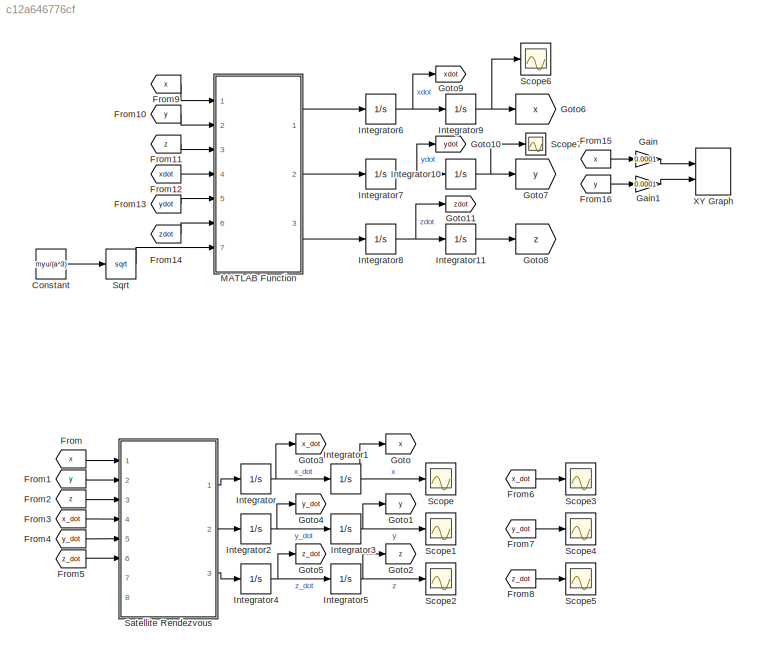
MODEL slx_c12a646776cf
KIND model
CONFIG AbsTol = auto
CONFIG EnableMultiTasking = off
CONFIG FixedStep = auto
CONFIG MaxStep = auto
CONFIG MinStep = auto
CONFIG RelTol = 1e-3
CONFIG SampleTimeConstraint = Unconstrained
CONFIG SolverName = VariableStepAuto
CONFIG StartTime = 0.0
CONFIG StopTime = 1e4
BLOCK [Constant] Constant
  Value = myu/(a^3)
BLOCK [From] From
  Commented = on
  GotoTag = x
BLOCK [From] From1
  Commented = on
  GotoTag = y
BLOCK [From] From10
  GotoTag = y
BLOCK [From] From11
  GotoTag = z
BLOCK [From] From12
  GotoTag = xdot
BLOCK [From] From13
  GotoTag = ydot
BLOCK [From] From14
  GotoTag = zdot
BLOCK [From] From15
  GotoTag = x
BLOCK [From] From16
  GotoTag = y
BLOCK [From] From2
  Commented = on
  GotoTag = z
BLOCK [From] From3
  Commented = on
  GotoTag = x_dot
BLOCK [From] From4
  Commented = on
  GotoTag = y_dot
BLOCK [From] From5
  Commented = on
  GotoTag = z_dot
BLOCK [From] From6
  Commented = on
  GotoTag = x_dot
BLOCK [From] From7
  Commented = on
  GotoTag = y_dot
BLOCK [From] From8
  Commented = on
  GotoTag = z_dot
BLOCK [From] From9
  GotoTag = x
BLOCK [Gain] Gain
  Gain = 0.0001
BLOCK [Gain] Gain1
  Gain = 0.0001
BLOCK [Goto] Goto
  Commented = on
  GotoTag = x
BLOCK [Goto] Goto1
  Commented = on
  GotoTag = y
BLOCK [Goto] Goto10
  GotoTag = ydot
BLOCK [Goto] Goto11
  GotoTag = zdot
BLOCK [Goto] Goto2
  Commented = on
  GotoTag = z
BLOCK [Goto] Goto3
  Commented = on
  GotoTag = x_dot
BLOCK [Goto] Goto4
  Commented = on
  GotoTag = y_dot
BLOCK [Goto] Goto5
  Commented = on
  GotoTag = z_dot
BLOCK [Goto] Goto6
  GotoTag = x
BLOCK [Goto] Goto7
  GotoTag = y
BLOCK [Goto] Goto8
  GotoTag = z
BLOCK [Goto] Goto9
  GotoTag = xdot
BLOCK [Integrator] Integrator
  Commented = on
  Ports = [1, 1]
BLOCK [Integrator] Integrator1
  Commented = on
  Ports = [1, 1]
BLOCK [Integrator] Integrator10
  InitialCondition = 10*1000
  Ports = [1, 1]
BLOCK [Integrator] Integrator11
  Ports = [1, 1]
BLOCK [Integrator] Integrator2
  Commented = on
  Ports = [1, 1]
BLOCK [Integrator] Integrator3
  Commented = on
  Ports = [1, 1]
BLOCK [Integrator] Integrator4
  Commented = on
  Ports = [1, 1]
BLOCK [Integrator] Integrator5
  Commented = on
  Ports = [1, 1]
BLOCK [Integrator] Integrator6
  InitialCondition = 22
  Ports = [1, 1]
BLOCK [Integrator] Integrator7
  InitialCondition = -22
  Ports = [1, 1]
BLOCK [Integrator] Integrator8
  Ports = [1, 1]
BLOCK [Integrator] Integrator9
  InitialCondition = 10*1000
  Ports = [1, 1]
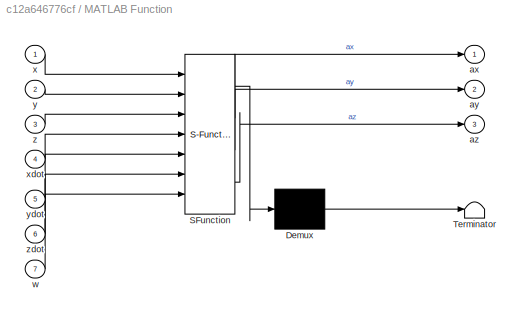
BLOCK [SubSystem] MATLAB Function
  ErrorFcn = Stateflow.Translate.translate
  PermitHierarchicalResolution = ExplicitOnly
  Ports = [7, 3]
  RequestExecContextInheritance = off
  SFBlockType = MATLAB Function
  TreatAsAtomicUnit = on
BLOCK [Demux] MATLAB Function/ Demux 
  Outputs = 1
  Ports = [1, 1]
BLOCK [S-Function] MATLAB Function/ SFunction 
  EnableBusSupport = on
  FunctionName = sf_sfun
  PortCounts = [7 4]
  Ports = [7, 4]
  SFcnIsStateOwnerBlock = off
  SFunctionDeploymentMode = off
  Tag = Stateflow S-Function 1
BLOCK [Terminator] MATLAB Function/ Terminator 
BLOCK [Outport] MATLAB Function/ax
BLOCK [Outport] MATLAB Function/ay
  Port = 2
BLOCK [Outport] MATLAB Function/az
  Port = 3
BLOCK [Inport] MATLAB Function/w
  Port = 7
BLOCK [Inport] MATLAB Function/x
BLOCK [Inport] MATLAB Function/xdot
  Port = 4
BLOCK [Inport] MATLAB Function/y
  Port = 2
BLOCK [Inport] MATLAB Function/ydot
  Port = 5
BLOCK [Inport] MATLAB Function/z
  Port = 3
BLOCK [Inport] MATLAB Function/zdot
  Port = 6
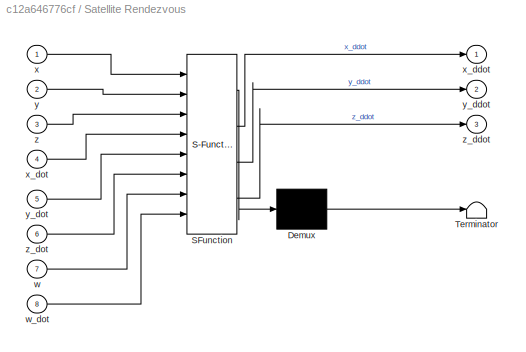
BLOCK [SubSystem] Satellite Rendezvous
  Commented = on
  ErrorFcn = Stateflow.Translate.translate
  PermitHierarchicalResolution = ExplicitOnly
  Ports = [8, 3]
  RequestExecContextInheritance = off
  SFBlockType = MATLAB Function
  TreatAsAtomicUnit = on
BLOCK [Demux] Satellite Rendezvous/ Demux 
  Outputs = 1
  Ports = [1, 1]
BLOCK [S-Function] Satellite Rendezvous/ SFunction 
  EnableBusSupport = on
  FunctionName = sf_sfun
  PortCounts = [8 4]
  Ports = [8, 4]
  SFcnIsStateOwnerBlock = off
  SFunctionDeploymentMode = off
  Tag = Stateflow S-Function 2
BLOCK [Terminator] Satellite Rendezvous/ Terminator 
BLOCK [Inport] Satellite Rendezvous/w
  Port = 7
BLOCK [Inport] Satellite Rendezvous/w_dot
  Port = 8
BLOCK [Inport] Satellite Rendezvous/x
BLOCK [Outport] Satellite Rendezvous/x_ddot
BLOCK [Inport] Satellite Rendezvous/x_dot
  Port = 4
BLOCK [Inport] Satellite Rendezvous/y
  Port = 2
BLOCK [Outport] Satellite Rendezvous/y_ddot
  Port = 2
BLOCK [Inport] Satellite Rendezvous/y_dot
  Port = 5
BLOCK [Inport] Satellite Rendezvous/z
  Port = 3
BLOCK [Outport] Satellite Rendezvous/z_ddot
  Port = 3
BLOCK [Inport] Satellite Rendezvous/z_dot
  Port = 6
BLOCK [Scope] Scope
  Commented = on
  Floating = off
  NumInputPorts = 1
  Ports = [1]
  ScopeSpecificationString = Simulink.scopes.TimeScopeBlockCfg('CurrentConfiguration', extmgr.ConfigurationSet(extmgr.Configuration('Core','General UI',true),extmgr.Configuration('Core','Source UI',true),extmgr.Configuration('Sources','WiredSimulink',true),extmgr.Configuration('Visuals','Time Domain',true),extmgr.Configuration('Tools','Plot Navigation',true),extmgr.Configuration('Tools','Measurements',true)),'Version','2021b'...<+1ch>
BLOCK [Scope] Scope1
  Commented = on
  Floating = off
  NumInputPorts = 1
  Ports = [1]
  ScopeSpecificationString = Simulink.scopes.TimeScopeBlockCfg('CurrentConfiguration', extmgr.ConfigurationSet(extmgr.Configuration('Core','General UI',true),extmgr.Configuration('Core','Source UI',true),extmgr.Configuration('Sources','WiredSimulink',true,'DataLoggingVariableName','ScopeData1'),extmgr.Configuration('Visuals','Time Domain',true),extmgr.Configuration('Tools','Plot Navigation',true),extmgr.Configuration('Tools',...<+40ch>
BLOCK [Scope] Scope2
  Commented = on
  Floating = off
  NumInputPorts = 1
  Ports = [1]
  ScopeSpecificationString = Simulink.scopes.TimeScopeBlockCfg('CurrentConfiguration', extmgr.ConfigurationSet(extmgr.Configuration('Core','General UI',true),extmgr.Configuration('Core','Source UI',true),extmgr.Configuration('Sources','WiredSimulink',true,'DataLoggingVariableName','ScopeData2'),extmgr.Configuration('Visuals','Time Domain',true),extmgr.Configuration('Tools','Plot Navigation',true),extmgr.Configuration('Tools',...<+40ch>
BLOCK [Scope] Scope3
  Commented = on
  Floating = off
  NumInputPorts = 1
  Ports = [1]
  ScopeSpecificationString = Simulink.scopes.TimeScopeBlockCfg('CurrentConfiguration', extmgr.ConfigurationSet(extmgr.Configuration('Core','General UI',true),extmgr.Configuration('Core','Source UI',true),extmgr.Configuration('Sources','WiredSimulink',true,'DataLoggingVariableName','ScopeData3'),extmgr.Configuration('Visuals','Time Domain',true),extmgr.Configuration('Tools','Plot Navigation',true),extmgr.Configuration('Tools',...<+40ch>
BLOCK [Scope] Scope4
  Commented = on
  Floating = off
  NumInputPorts = 1
  Ports = [1]
  ScopeSpecificationString = Simulink.scopes.TimeScopeBlockCfg('CurrentConfiguration', extmgr.ConfigurationSet(extmgr.Configuration('Core','General UI',true),extmgr.Configuration('Core','Source UI',true),extmgr.Configuration('Sources','WiredSimulink',true,'DataLoggingVariableName','ScopeData4'),extmgr.Configuration('Visuals','Time Domain',true),extmgr.Configuration('Tools','Plot Navigation',true),extmgr.Configuration('Tools',...<+40ch>
BLOCK [Scope] Scope5
  Commented = on
  Floating = off
  NumInputPorts = 1
  Ports = [1]
  ScopeSpecificationString = Simulink.scopes.TimeScopeBlockCfg('CurrentConfiguration', extmgr.ConfigurationSet(extmgr.Configuration('Core','General UI',true),extmgr.Configuration('Core','Source UI',true),extmgr.Configuration('Sources','WiredSimulink',true,'DataLoggingVariableName','ScopeData5'),extmgr.Configuration('Visuals','Time Domain',true),extmgr.Configuration('Tools','Plot Navigation',true),extmgr.Configuration('Tools',...<+40ch>
BLOCK [Scope] Scope6
  Floating = off
  NumInputPorts = 1
  Ports = [1]
  ScopeSpecificationString = Simulink.scopes.TimeScopeBlockCfg('CurrentConfiguration', extmgr.ConfigurationSet(extmgr.Configuration('Core','General UI',true),extmgr.Configuration('Core','Source UI',true),extmgr.Configuration('Sources','WiredSimulink',true,'DataLoggingVariableName','ScopeData1'),extmgr.Configuration('Visuals','Time Domain',true,'SerializedDisplays',{struct('MinYLimReal','-29698.8381','MaxYLimReal','28008.68723...<+1421ch>
BLOCK [Scope] Scope7
  Floating = off
  NumInputPorts = 1
  Ports = [1]
  ScopeSpecificationString = Simulink.scopes.TimeScopeBlockCfg('CurrentConfiguration', extmgr.ConfigurationSet(extmgr.Configuration('Core','General UI',true),extmgr.Configuration('Core','Source UI',true),extmgr.Configuration('Sources','WiredSimulink',true,'DataLoggingVariableName','ScopeData2'),extmgr.Configuration('Visuals','Time Domain',true,'SerializedDisplays',{struct('MinYLimReal','-85696.99826','MaxYLimReal','34421.6223...<+1426ch>
BLOCK [Sqrt] Sqrt
BLOCK [Record] XY Graph
  CompatibilityTag = XY
  FileSettingsInternal = {"entries":[{"content":{"excelSettings":{"content":{},"type":"Streamout.ExcelSettings"}},"type":"Streamout.FileSettingStorage","uuid":"c18631f9-0ebd-4fe2-bf27-90fa1f93e8fc"}],"packageUris":["http://schema.mathworks.com/mf0/streamout_blocks/R2020a"],"version":"1.0"}
  Layout = [1 1]
  Ports = [2]
  SignalsInternal = {"entries":[{"content":{"signals":[{"content":{"blockPath":["Koopman_Rendezvous/XY Graph"],"channel":[],"dimensions":[1],"domain":"Koopman_Rendezvous/XY Graph","lineColor":"#a2142f","plots":[1],"port":1,"sid":[""],"signalID":322,"signalName":"Gain"},"type":"RecordBlkView.Signal","uuid":"9f039798-c302-4e20-9bf4-46f2808f492c"},{"content":{"blockPath":["Koopman_Rendezvous/XY Graph"],"channel":[],"dim...<+396ch>
  VisualizationBindings = {"xyplotplugin":{"info":[{"series":[{"bindingParametersList":[{"parameter":"X-Axis","signalID":322,"signalName":"Gain"},{"parameter":"Y-Axis","signalID":326,"signalName":"Gain1"}],"seriesID":922}],"subplotID":1}]}}
LINE Constant:1 -> Sqrt:1
LINE From10:1 -> MATLAB Function:2
LINE From11:1 -> MATLAB Function:3
LINE From12:1 -> MATLAB Function:4
LINE From13:1 -> MATLAB Function:5
LINE From14:1 -> MATLAB Function:6
LINE From15:1 -> Gain:1
LINE From16:1 -> Gain1:1
LINE From1:1 -> Satellite Rendezvous:2
LINE From2:1 -> Satellite Rendezvous:3
LINE From3:1 -> Satellite Rendezvous:4
LINE From4:1 -> Satellite Rendezvous:5
LINE From5:1 -> Satellite Rendezvous:6
LINE From6:1 -> Scope3:1
LINE From7:1 -> Scope4:1
LINE From8:1 -> Scope5:1
LINE From9:1 -> MATLAB Function:1
LINE From:1 -> Satellite Rendezvous:1
LINE Gain1:1 -> XY Graph:2
LINE Gain:1 -> XY Graph:1
NET Integrator10:1 -> Goto7:1, Scope7:1
LINE Integrator11:1 -> Goto8:1
NET Integrator1:1 -> Goto:1, Scope:1
NET Integrator2:1 -> Goto4:1, Integrator3:1
NET Integrator3:1 -> Goto1:1, Scope1:1
NET Integrator4:1 -> Goto5:1, Integrator5:1
NET Integrator5:1 -> Goto2:1, Scope2:1
NET Integrator6:1 -> Goto9:1, Integrator9:1
NET Integrator7:1 -> Goto10:1, Integrator10:1
NET Integrator8:1 -> Goto11:1, Integrator11:1
NET Integrator9:1 -> Goto6:1, Scope6:1
NET Integrator:1 -> Goto3:1, Integrator1:1
LINE MATLAB Function:1 -> Integrator6:1
LINE MATLAB Function:2 -> Integrator7:1
LINE MATLAB Function:3 -> Integrator8:1
LINE Satellite Rendezvous:1 -> Integrator:1
LINE Satellite Rendezvous:2 -> Integrator2:1
LINE Satellite Rendezvous:3 -> Integrator4:1
LINE Sqrt:1 -> MATLAB Function:7
note: NET lines group one-source signal fan-out (src -> all destinations, sorted); 1:1 wires keep LINE
CHART MATLAB Function states=1 transitions=1
  STATE_LABEL 'eML_blk_kernel()'
  STATE_LABEL "SCRIPT:\nfunction [ax,ay,az]= fcn(x,y,z,xdot,ydot,zdot,w)\nX = [x y z xdot ydot zdot]';\nA = [0 0 0 1 0 0; 0 0 0 0 1 0; 0 0 0 0 0 1; 3*w*w 0 0 0 2*w 0; 0 0 0 -2*w 0 0; 0 0 -w*w 0 0 0];\nXdot = A*X;\nax = Xdot(4);\nay = Xdot(5);\naz = Xdot(6);\n"
CHART Satellite Rendezvous states=1 transitions=1
  STATE_LABEL 'eML_blk_kernel()'
  STATE_LABEL 'SCRIPT:\nfunction [x_ddot, y_ddot, z_ddot] = fcn(x, y, z, x_dot, y_dot, z_dot, w, w_dot)\nx_d = [2*w*z_dot + w_dot*z + w*w*x - myu*x/(x^2 + y^2 + (z-R)^2)^(3/2); -myu*y/(x^2 + y^2 + (z-R)^2)^(3/2); w^2*z - 2*w*x_dot - w_dot*x - myu*((z-R)/(x^2 + y^2 + (z-R)^2)^(3/2) + 1/R^2)]\nx_ddot = x_d(1);\ny_ddot = x_d(2);\nz_ddot = x_d(3);'
CHART  states=0 transitions=0
CHART  states=0 transitions=0
